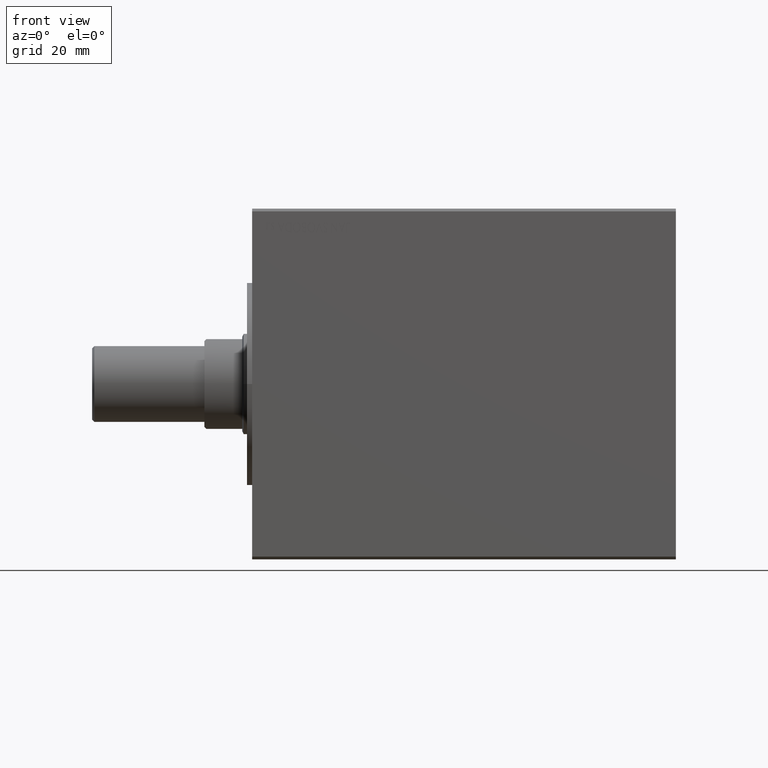
[diagram: clean part render]
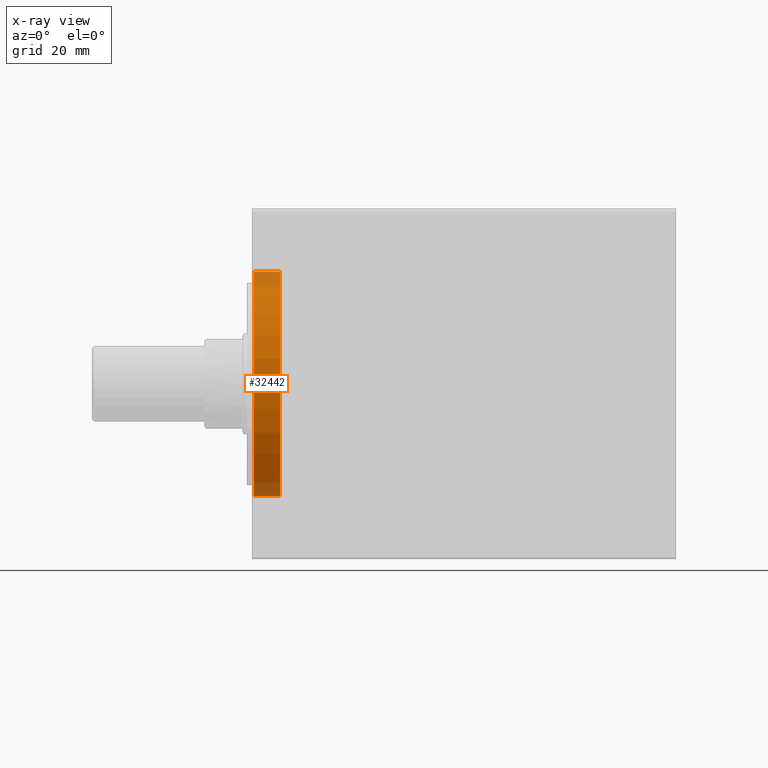
[diagram: x-ray — body ghosted, one internal face saturated and labeled with its STEP entity id]
A machine part, front view, then the same camera in x-ray: the body is ghosted and one INTERNAL B-rep face — a face not visible from any outside direction — is saturated and labeled: STEP entity #32442.
In plain terms, the highlighted cylindrical surface (partial cylindrical patch) has radius 40 mm, axis along (-1, -0, -0).
Its self-contained STEP definition (entity closure, byte-faithful):
#3715 = DIRECTION ( 'NONE',  ( -1.000000000000000000, -0.000000000000000000, -0.000000000000000000 ) ) ;
#7062 = CIRCLE ( 'NONE', #31286, 40.00000000000000000 ) ;
#7942 = CARTESIAN_POINT ( 'NONE',  ( 10.00000000000000000, 0.000000000000000000, 40.00000000000000000 ) ) ;
#8489 = CARTESIAN_POINT ( 'NONE',  ( 10.00000000000000000, 0.000000000000000000, 0.000000000000000000 ) ) ;
#8949 = AXIS2_PLACEMENT_3D ( 'NONE', #8489, #39723, #35500 ) ;
#10639 = VERTEX_POINT ( 'NONE', #33077 ) ;
#14628 = DIRECTION ( 'NONE',  ( 0.000000000000000000, 0.000000000000000000, -1.000000000000000000 ) ) ;
#14914 = VECTOR ( 'NONE', #3715, 1000.000000000000000 ) ;
#15095 = ORIENTED_EDGE ( 'NONE', *, *, #40129, .F. ) ;
#18214 = VECTOR ( 'NONE', #32491, 1000.000000000000000 ) ;
#19186 = FACE_OUTER_BOUND ( 'NONE', #25027, .T. ) ;
#19220 = EDGE_CURVE ( 'NONE', #43540, #10639, #7062, .T. ) ;
#19233 = CARTESIAN_POINT ( 'NONE',  ( 10.00000000000000000, 4.898587196589413026E-15, -40.00000000000000000 ) ) ;
#20410 = DIRECTION ( 'NONE',  ( -1.000000000000000000, 0.000000000000000000, 0.000000000000000000 ) ) ;
#20731 = EDGE_CURVE ( 'NONE', #31190, #43540, #27165, .T. ) ;
#20965 = ORIENTED_EDGE ( 'NONE', *, *, #32991, .F. ) ;
#23110 = DIRECTION ( 'NONE',  ( 0.000000000000000000, 0.000000000000000000, 1.000000000000000000 ) ) ;
#23327 = CARTESIAN_POINT ( 'NONE',  ( 10.00000000000000000, 0.000000000000000000, 0.000000000000000000 ) ) ;
#23368 = CIRCLE ( 'NONE', #24812, 40.00000000000000000 ) ;
#24666 = DIRECTION ( 'NONE',  ( -1.000000000000000000, 0.000000000000000000, 0.000000000000000000 ) ) ;
#24812 = AXIS2_PLACEMENT_3D ( 'NONE', #23327, #20410, #23110 ) ;
#25027 = EDGE_LOOP ( 'NONE', ( #15095, #42766, #37728, #20965 ) ) ;
#25563 = LINE ( 'NONE', #7942, #18214 ) ;
#25601 = CARTESIAN_POINT ( 'NONE',  ( 10.00000000000000000, 0.000000000000000000, 40.00000000000000000 ) ) ;
#25673 = CYLINDRICAL_SURFACE ( 'NONE', #8949, 40.00000000000000000 ) ;
#27165 = LINE ( 'NONE', #37886, #14914 ) ;
#28902 = VERTEX_POINT ( 'NONE', #25601 ) ;
#31190 = VERTEX_POINT ( 'NONE', #19233 ) ;
#31286 = AXIS2_PLACEMENT_3D ( 'NONE', #37623, #24666, #14628 ) ;
#32442 = ADVANCED_FACE ( 'NONE', ( #19186 ), #25673, .F. ) ;
#32491 = DIRECTION ( 'NONE',  ( -1.000000000000000000, -0.000000000000000000, -0.000000000000000000 ) ) ;
#32991 = EDGE_CURVE ( 'NONE', #28902, #10639, #25563, .T. ) ;
#33077 = CARTESIAN_POINT ( 'NONE',  ( 0.7000000000000130562, 0.000000000000000000, 40.00000000000000000 ) ) ;
#35500 = DIRECTION ( 'NONE',  ( 0.000000000000000000, 0.000000000000000000, 1.000000000000000000 ) ) ;
#37623 = CARTESIAN_POINT ( 'NONE',  ( 0.7000000000000130562, 0.000000000000000000, 0.000000000000000000 ) ) ;
#37728 = ORIENTED_EDGE ( 'NONE', *, *, #19220, .T. ) ;
#37886 = CARTESIAN_POINT ( 'NONE',  ( 10.00000000000000000, 4.898587196589413026E-15, -40.00000000000000000 ) ) ;
#39318 = CARTESIAN_POINT ( 'NONE',  ( 0.7000000000000130562, 4.898587196589413026E-15, -40.00000000000000000 ) ) ;
#39723 = DIRECTION ( 'NONE',  ( -1.000000000000000000, -0.000000000000000000, -0.000000000000000000 ) ) ;
#40129 = EDGE_CURVE ( 'NONE', #31190, #28902, #23368, .T. ) ;
#42766 = ORIENTED_EDGE ( 'NONE', *, *, #20731, .T. ) ;
#43540 = VERTEX_POINT ( 'NONE', #39318 ) ;